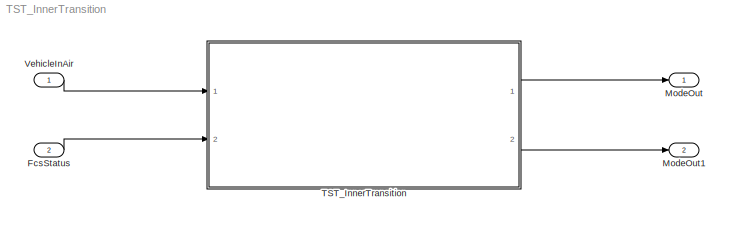
MODEL TST_InnerTransition
KIND model
BLOCK [Inport] FcsStatus
  IconDisplay = Port number
  OutDataTypeStr = Bus: FCS_FlightControlSystem_Status
  Port = 2
  SID = 168
BLOCK [Outport] ModeOut
  IconDisplay = Port number
  OutDataTypeStr = uint32
  PortDimensions = 1
  SID = 169
BLOCK [Outport] ModeOut1
  IconDisplay = Port number
  OutDataTypeStr = uint32
  Port = 2
  PortDimensions = 1
  SID = 172
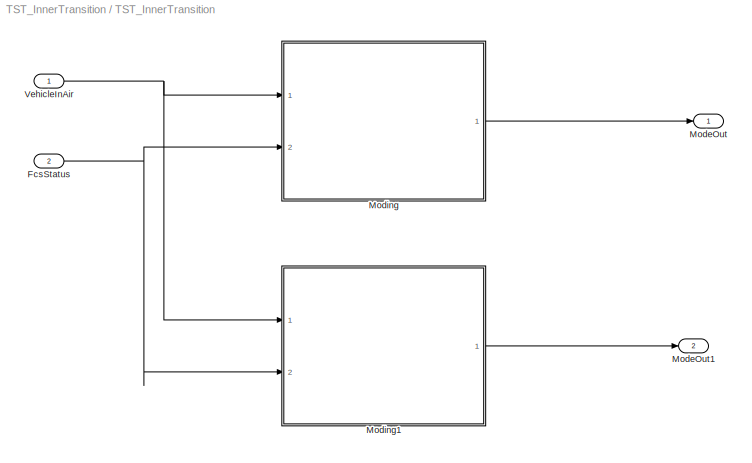
BLOCK [SubSystem] TST_InnerTransition
  Ports = [2, 2]
  RequestExecContextInheritance = off
  SID = 160
  TreatAsAtomicUnit = on
BLOCK [Inport] TST_InnerTransition/FcsStatus
  IconDisplay = Port number
  OutDataTypeStr = Bus: FCS_FlightControlSystem_Status
  Port = 2
  SID = 164
BLOCK [Outport] TST_InnerTransition/ModeOut
  IconDisplay = Port number
  OutDataTypeStr = uint32
  PortDimensions = 1
  SID = 166
BLOCK [Outport] TST_InnerTransition/ModeOut1
  IconDisplay = Port number
  OutDataTypeStr = uint32
  Port = 2
  PortDimensions = 1
  SID = 171
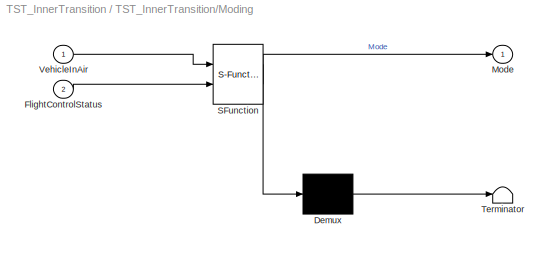
BLOCK [SubSystem] TST_InnerTransition/Moding
  ErrorFcn = Stateflow.Translate.translate
  PermitHierarchicalResolution = ExplicitOnly
  Ports = [2, 1]
  RequestExecContextInheritance = off
  SFBlockType = Chart
  SID = 165
  TreatAsAtomicUnit = on
BLOCK [Demux] TST_InnerTransition/Moding/ Demux 
  Outputs = 1
  Ports = [1, 1]
  SID = 165::152
BLOCK [S-Function] TST_InnerTransition/Moding/ SFunction 
  EnableBusSupport = off
  FunctionName = sf_sfun
  PortCounts = [2 2]
  Ports = [2, 2]
  SFcnIsStateOwnerBlock = off
  SFunctionDeploymentMode = off
  SID = 165::151
  Tag = Stateflow S-Function 1
BLOCK [Terminator] TST_InnerTransition/Moding/ Terminator 
  SID = 165::153
BLOCK [Inport] TST_InnerTransition/Moding/FlightControlStatus
  IconDisplay = Port number
  Port = 2
  SID = 165::145
BLOCK [Outport] TST_InnerTransition/Moding/Mode
  IconDisplay = Port number
  SID = 165::150
BLOCK [Inport] TST_InnerTransition/Moding/VehicleInAir
  IconDisplay = Port number
  SID = 165::144
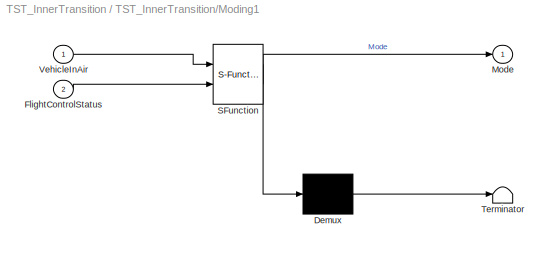
BLOCK [SubSystem] TST_InnerTransition/Moding1
  ErrorFcn = Stateflow.Translate.translate
  PermitHierarchicalResolution = ExplicitOnly
  Ports = [2, 1]
  RequestExecContextInheritance = off
  SFBlockType = Chart
  SID = 170
  TreatAsAtomicUnit = on
BLOCK [Demux] TST_InnerTransition/Moding1/ Demux 
  Outputs = 1
  Ports = [1, 1]
  SID = 170::152
BLOCK [S-Function] TST_InnerTransition/Moding1/ SFunction 
  EnableBusSupport = off
  FunctionName = sf_sfun
  PortCounts = [2 2]
  Ports = [2, 2]
  SFcnIsStateOwnerBlock = off
  SFunctionDeploymentMode = off
  SID = 170::151
  Tag = Stateflow S-Function 2
BLOCK [Terminator] TST_InnerTransition/Moding1/ Terminator 
  SID = 170::153
BLOCK [Inport] TST_InnerTransition/Moding1/FlightControlStatus
  IconDisplay = Port number
  Port = 2
  SID = 170::145
BLOCK [Outport] TST_InnerTransition/Moding1/Mode
  IconDisplay = Port number
  SID = 170::150
BLOCK [Inport] TST_InnerTransition/Moding1/VehicleInAir
  IconDisplay = Port number
  SID = 170::144
BLOCK [Inport] TST_InnerTransition/VehicleInAir
  IconDisplay = Port number
  OutDataTypeStr = boolean
  PortDimensions = 1
  SID = 163
BLOCK [Inport] VehicleInAir
  IconDisplay = Port number
  OutDataTypeStr = boolean
  PortDimensions = 1
  SID = 167
LINE FcsStatus:1 -> TST_InnerTransition:2
NET TST_InnerTransition/FcsStatus:1 -> TST_InnerTransition/Moding1:2, TST_InnerTransition/Moding:2
LINE TST_InnerTransition/Moding/ Demux :1 -> TST_InnerTransition/Moding/ Terminator :1
LINE TST_InnerTransition/Moding/ SFunction :1 -> TST_InnerTransition/Moding/ Demux :1
LINE TST_InnerTransition/Moding/ SFunction :2 -> TST_InnerTransition/Moding/Mode:1
LINE TST_InnerTransition/Moding/FlightControlStatus:1 -> TST_InnerTransition/Moding/ SFunction :2
LINE TST_InnerTransition/Moding/VehicleInAir:1 -> TST_InnerTransition/Moding/ SFunction :1
LINE TST_InnerTransition/Moding1/ Demux :1 -> TST_InnerTransition/Moding1/ Terminator :1
LINE TST_InnerTransition/Moding1/ SFunction :1 -> TST_InnerTransition/Moding1/ Demux :1
LINE TST_InnerTransition/Moding1/ SFunction :2 -> TST_InnerTransition/Moding1/Mode:1
LINE TST_InnerTransition/Moding1/FlightControlStatus:1 -> TST_InnerTransition/Moding1/ SFunction :2
LINE TST_InnerTransition/Moding1/VehicleInAir:1 -> TST_InnerTransition/Moding1/ SFunction :1
LINE TST_InnerTransition/Moding1:1 -> TST_InnerTransition/ModeOut1:1
LINE TST_InnerTransition/Moding:1 -> TST_InnerTransition/ModeOut:1
NET TST_InnerTransition/VehicleInAir:1 -> TST_InnerTransition/Moding1:1, TST_InnerTransition/Moding:1
LINE TST_InnerTransition:1 -> ModeOut:1
LINE TST_InnerTransition:2 -> ModeOut1:1
LINE VehicleInAir:1 -> TST_InnerTransition:1
note: NET lines group one-source signal fan-out (src -> all destinations, sorted); 1:1 wires keep LINE
CHART TST_InnerTransition/Moding states=5 transitions=9
  STATE_LABEL 'Main'
  STATE_LABEL 'UpdateFeedthroughParameters'
  STATE_LABEL 'Off\\nentry:\\nMode = uint32(1);'
  STATE_LABEL 'Launch\\nentry:\\nMode = uint32(2);'
  STATE_LABEL 'Autoland\\nentry:\\nMode = uint32(3);'
CHART TST_InnerTransition/Moding1 states=5 transitions=6
  STATE_LABEL 'Main'
  STATE_LABEL 'UpdateFeedthroughParameters'
  STATE_LABEL 'Off\\nentry:\\nMode = uint32(1);'
  STATE_LABEL 'Launch\\nentry:\\nMode = uint32(2);'
  STATE_LABEL 'Autoland\\nentry:\\nMode = uint32(3);'
